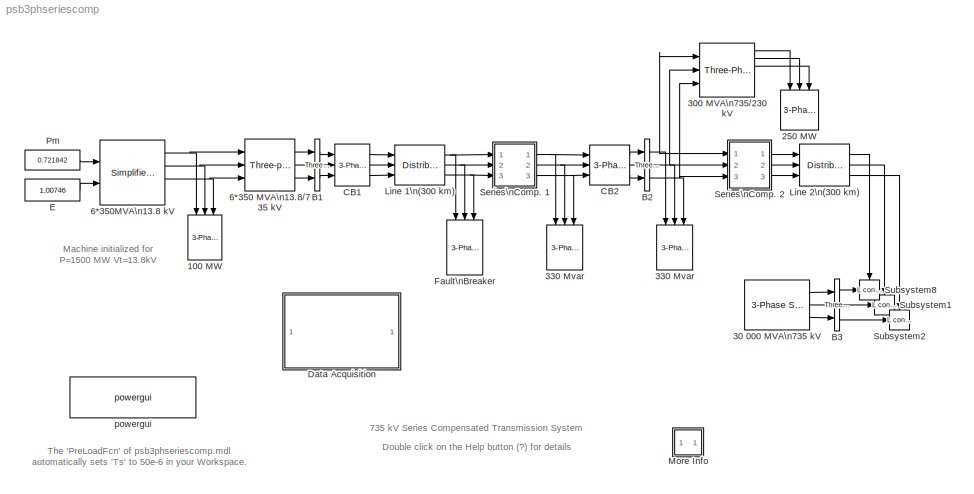
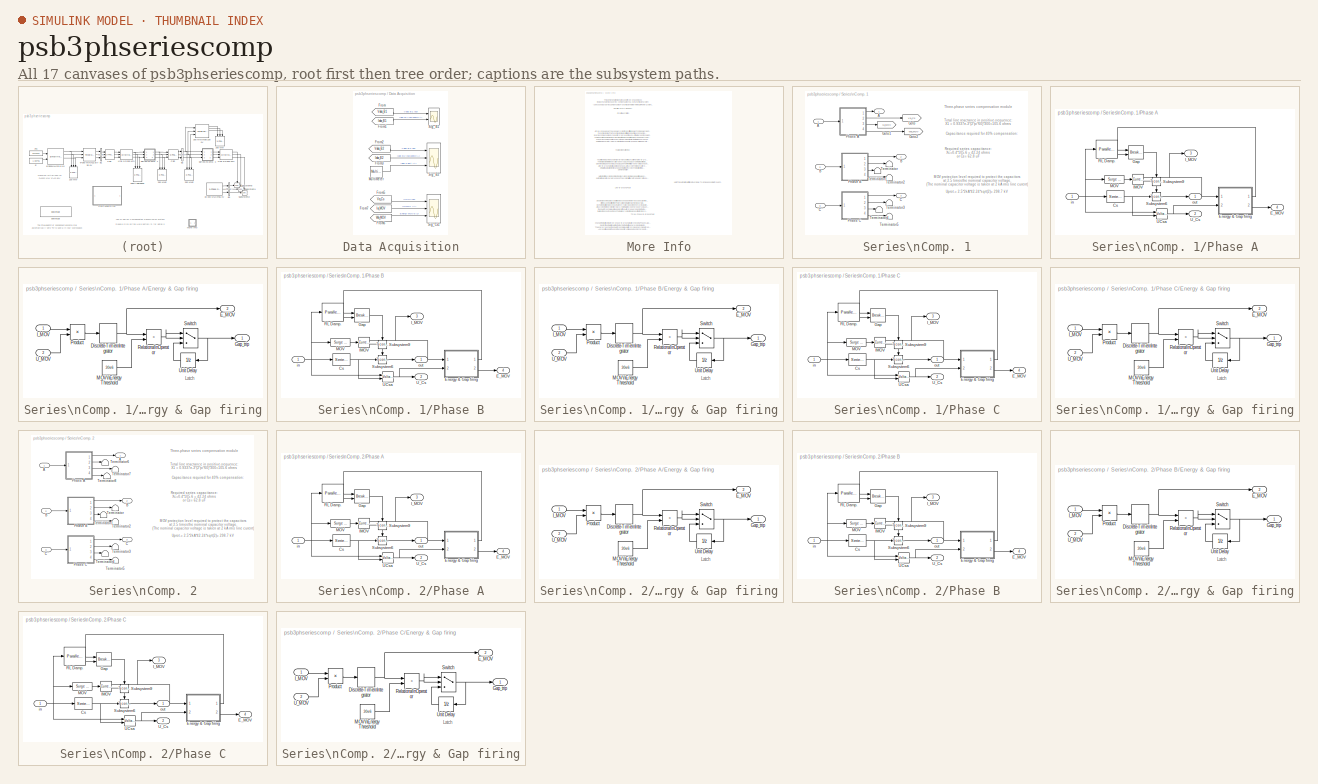
[diagram: thumbnail index - all 17 canvases of the model, root first then tree order]
MODEL psb3phseriescomp
KIND model
CONFIG InitFcn = powericon('psbinitsys',bdroot);
CONFIG PreLoadFcn = assignin('base','Ts',[50e-6])
BLOCK [Reference] 100 MW  REF=powerlib2/Elements/3-Phase\nSeries RLC Load
  P3 = 100e6
  Ports = [3]
  QC3 = 0
  QL3 = 0
  SourceBlock = powerlib2/Elements/3-Phase\nSeries RLC Load
  SourceType = 3-phase series RLC load
  Vpp = 13.8e3
  fn = 60
BLOCK [Reference] 250 MW  REF=powerlib2/Elements/3-Phase\nSeries RLC Load
  P3 = 250e6
  Ports = [3]
  QC3 = 0
  QL3 = 0
  SourceBlock = powerlib2/Elements/3-Phase\nSeries RLC Load
  SourceType = 3-phase series RLC load
  Vpp = 230e3
  fn = 60
BLOCK [Reference] 30 000 MVA\n735 kV  REF=powerlib2/Electrical\nSources/3-Phase Source
  F = 60
  InternalConnection = Yg
  L = 735^2/30000/377
  PSBOutputType = 111
  Phi = 0
  Ports = [0, 3]
  Psc = 30000e6
  R = 735^2/30000/10
  RLoff = on
  SourceBlock = powerlib2/Electrical\nSources/3-Phase Source
  SourceType = 3-Phase Source
  Tag = PoWeRsYsTeMbLoCk
  V = 735e3
  Vbase = 735e3
  XRratio = 10
BLOCK [Reference] 300 MVA\n735//230 kV  REF=powerlib2/Elements/Three-Phase\nTransformer\n(Three Windings)
  PSBOutputType = 1111111
  Ports = [3, 6]
  SourceBlock = powerlib2/Elements/Three-Phase\nTransformer\n(Three Windings)
  SourceType = Three-Phase Transformer (Three Windings)
  Tag = PoWeRsYsTeMbLoCk
  confi = ABC as input terminals
  hyst = off
  ifl = [0.8 -0.8 0.7]
  initialslopes = [+1 +1 +1]
  lm = 1000
  matfile = 'hysteresis'
  mesure = None
  nom = [ 300e6 , 60 ]
  rmag = 500
  sat = [  0,0  ;  0.0012,1.2  ;  1.0,1.45 ]
  sif = off
  w1 = [ 735e3 , 0.002 , 0.15 ]
  w2 = [ 230e3 , 0.002 , 0 ]
  w3 = [ 25e3 , 0.05 , 0.20 ]
  ydw1 = Yg
  ydw2 = Yg
  ydw3 = Delta (D1)
  ynsat = on
BLOCK [Reference] 330 Mvar  REF=powerlib2/Elements/3-Phase\nSeries RLC Load
  P3 = 330e6/250
  Ports = [3]
  QC3 = 0
  QL3 = 330e6
  SourceBlock = powerlib2/Elements/3-Phase\nSeries RLC Load
  SourceType = 3-phase series RLC load
  Vpp = 735e3
  fn = 60
BLOCK [Reference] 330 Mvar   REF=powerlib2/Elements/3-Phase\nSeries RLC Load
  P3 = 330e6/250
  Ports = [3]
  QC3 = 0
  QL3 = 330e6
  SourceBlock = powerlib2/Elements/3-Phase\nSeries RLC Load
  SourceType = 3-phase series RLC load
  Vpp = 735e3
  fn = 60
BLOCK [Reference] 6*350 MVA\n13.8//735 kV  REF=powerlib2/Elements/Three-phase\nTransformer\n(Two Windings)
  PSBOutputType = 111
  Ports = [3, 3]
  SourceBlock = powerlib2/Elements/Three-phase\nTransformer\n(Two Windings)
  SourceType = Three-Phase Transformer (Two Windings)
  Tag = PoWeRsYsTeMbLoCk
  hyst = off
  initialslopes = [+1 +1 +1]
  lm = 500
  matfile = 'hysteresis'
  mesure = None
  nominal = [ 6*350e6 , 60 ]
  params1 = [ 13.8e3 , 0.002 , 0.08 ]
  params2 = [ 735e3 , 0.002 , 0.08 ]
  phi0 = [ 0.8 , -0.8 , 0.7 ]
  rmag = 500
  sat = [ 0,0 ; 0.0024,1.2 ; 1.0,1.52 ]
  sif = off
  type1 = Delta (D1)
  type2 = Yg
  ynsat = off
BLOCK [Reference] 6*350MVA\n13.8 kV  REF=powerlib2/Machines/Simplified Synchronous \nMachine  pu Units
  LoadFlowParameters = [1,0,0,0,0]
  PSBOutputType = 1110
  Ports = [2, 4]
  SourceBlock = powerlib2/Machines/Simplified Synchronous \nMachine  pu Units
  SourceType = Simplified Synchronous Machine
  Tag = PoWeRsYsTeMbLoCk
  conType = 3-wire Y
  iounits = 0
  x1 = [ 6*350e6 13.8e3  60 ]
  x2 = [ inf,0,2 ]
  x3 = [ 0.22/15  0.22 ]
  x4 = [0 3.29695 0.717757 0.717757 0.717757 -0.0992806 -120.099 119.901]
BLOCK [Reference] B1  REF=powerlib2/Measurements/Three-Phase\nV-I Measurement
  IChoice = yes
  OutputType = Complex
  PSBOutputType = 11100
  PSBequivalent = 0
  Pbase = 100e6
  PhasorSimulation = off
  Ports = [3, 3]
  Ppu = on
  SourceBlock = powerlib2/Measurements/Three-Phase\nV-I Measurement
  SourceType = 3-Phase VI Measurement
  Tag = PoWeRsYsTeMmEaSuReMeNt
  VChoice = phase-to-ground
  Vbase = 735e3
  Vpu = on
  labelC = Iabc_B1
  labelV = Vabc_B1
  ualc = on
  ualv = on
BLOCK [Reference] B2  REF=powerlib2/Measurements/Three-Phase\nV-I Measurement
  IChoice = yes
  OutputType = Complex
  PSBOutputType = 11100
  PSBequivalent = 0
  Pbase = 100e6
  PhasorSimulation = off
  Ports = [3, 3]
  Ppu = on
  SourceBlock = powerlib2/Measurements/Three-Phase\nV-I Measurement
  SourceType = 3-Phase VI Measurement
  Tag = PoWeRsYsTeMmEaSuReMeNt
  VChoice = phase-to-ground
  Vbase = 735e3
  Vpu = on
  labelC = Iabc_B2
  labelV = Vabc_B2
  ualc = on
  ualv = on
BLOCK [Reference] B3  REF=powerlib2/Measurements/Three-Phase\nV-I Measurement
  IChoice = no
  OutputType = Complex
  PSBOutputType = 11100
  PSBequivalent = 1
  Pbase = 0
  PhasorSimulation = off
  Ports = [3, 3]
  Ppu = off
  SourceBlock = powerlib2/Measurements/Three-Phase\nV-I Measurement
  SourceType = 3-Phase VI Measurement
  Tag = PoWeRsYsTeMmEaSuReMeNt
  VChoice = no
  Vbase = 0
  Vpu = off
  labelC = Iabc_B3
  labelV = Vabc_B3
  ualc = off
  ualv = off
BLOCK [Reference] CB1  REF=powerlib2/Elements/3-Phase Breaker
  Cp = inf
  Ports = [3, 3]
  Ron = 0.001
  Rp = 1e5
  SourceBlock = powerlib2/Elements/3-Phase Breaker
  SourceType = Three-Phase Breaker
  Ts = Ts
  comext = off
  init_states = closed
  mesure = None
  sa = on
  sb = on
  sc = on
  sw_times = [5/60  ]
BLOCK [Reference] CB2  REF=powerlib2/Elements/3-Phase Breaker
  Cp = inf
  Ports = [3, 3]
  Ron = 0.001
  Rp = 1e5
  SourceBlock = powerlib2/Elements/3-Phase Breaker
  SourceType = Three-Phase Breaker
  Ts = Ts
  comext = off
  init_states = closed
  mesure = None
  sa = on
  sb = on
  sc = on
  sw_times = [5/60  ]
BLOCK [SubSystem] Data Acquisition
  MaskDisplay = disp('Open this block\\nto visualize\\nrecorded signals')
  MaskIconFrame = on
  MaskIconOpaque = on
  MaskIconRotate = none
  MaskIconUnits = autoscale
  MaskType = Data Acquisition
  MinAlgLoopOccurrences = off
  Ports = []
  RTWSystemCode = Auto
  TreatAsAtomicUnit = off
BLOCK [From] Data Acquisition/From
  CloseFcn = tagdialog Close
  DialogController = Simulink.DDGSource
  GotoTag = Vabc_B1
BLOCK [From] Data Acquisition/From1
  CloseFcn = tagdialog Close
  DialogController = Simulink.DDGSource
  GotoTag = Iabc_B1
BLOCK [From] Data Acquisition/From2
  CloseFcn = tagdialog Close
  DialogController = Simulink.DDGSource
  GotoTag = Vabc_B2
BLOCK [From] Data Acquisition/From3
  CloseFcn = tagdialog Close
  DialogController = Simulink.DDGSource
  GotoTag = Iabc_B2
BLOCK [From] Data Acquisition/From5
  CloseFcn = tagdialog Close
  DialogController = Simulink.DDGSource
  GotoTag = Va_Cs
BLOCK [From] Data Acquisition/From6
  CloseFcn = tagdialog Close
  DialogController = Simulink.DDGSource
  GotoTag = Wa_MOV
BLOCK [From] Data Acquisition/From7
  CloseFcn = tagdialog Close
  DialogController = Simulink.DDGSource
  GotoTag = Ia_MOV
BLOCK [Reference] Data Acquisition/Multimeter  REF=powerlib2/Measurements/Multimeter
  AxesSetting = [0,0.1,-100,100]
  Display = 0
  Gain = [1 1 1]
  L = 3
  OutputType = Magnitude
  PSBOutputType = 1
  PSBequivalent = 0
  PhasorSimulation = off
  Ports = [0, 1]
  SavedBlockNames = {}
  SourceBlock = powerlib2/Measurements/Multimeter
  SourceType = MultimeterPSB
  Tag = PoWeRsYsTeMmEaSuReMeNt
  sel = [1 2 3]
  yselected = {'Ib: Fault Breaker/Fault A','Ib: Fault Breaker/Fault B','Ib: Fault Breaker/Fault C'};
BLOCK [Scope] Data Acquisition/Sig_B1
  DataFormat = StructureWithTime
  LimitDataPoints = off
  NumInputPorts = 2
  Ports = [2]
  SampleInput = on
  SampleTime = Ts
  SaveName = Sig_B1
  SaveToWorkspace = on
  TimeRange = 0.2
  YMax = 1.5~40
  YMin = -1.5~-20
BLOCK [Scope] Data Acquisition/Sig_B2
  DataFormat = StructureWithTime
  LimitDataPoints = off
  NumInputPorts = 3
  Ports = [3]
  SampleInput = on
  SampleTime = Ts
  SaveName = Sig_B2
  SaveToWorkspace = on
  TimeRange = 0.2
  YMax = 4~100~20000
  YMin = -2~-100~-10000
BLOCK [Scope] Data Acquisition/Sig_Cs1
  DataFormat = StructureWithTime
  LimitDataPoints = off
  NumInputPorts = 3
  Ports = [3]
  SampleInput = on
  SampleTime = Ts
  SaveName = Sig_Cs1
  SaveToWorkspace = on
  TimeRange = 0.2
  YMax = 300000~15000~4e+007
  YMin = -300000~-10000~0
  ZoomMode = yonly
BLOCK [Constant] E
  Value = 1.00746
BLOCK [Reference] Fault\nBreaker  REF=powerlib2/Elements/3-Phase Fault
  Cp = inf
  Ports = [3]
  Rdef = 0.001
  Rp = inf
  Rt = 1
  SourceBlock = powerlib2/Elements/3-Phase Fault
  SourceType = Three-Phase Fault
  Ts = Ts
  comext = off
  init_statext = [0 0 1]
  mesure = Fault currents
  sa = on
  sb = off
  sc = off
  st = on
  sw_status = [1 0]
  sw_times = [ 1/60 6/60]
BLOCK [Reference] Line 1\n(300 km)  REF=powerlib2/Elements/Distributed Parameters Line
  PSBOutputType = 111111111111111111111111111111
  Ports = [3, 3]
  SourceBlock = powerlib2/Elements/Distributed Parameters Line
  SourceType = Distributed Parameters Line
  Tag = PoWeRsYsTeMbLoCk
  c = [12.74e-9 7.751e-9]
  f = 60
  l = [0.9337e-3  4.1264e-3]
  lgt = 300
  mesure = None
  n = 3
  r = [0.01273 0.3864]
  x1 = [0 -2.475e-008 3.253e+005 -6.709e+005;0.0003733 -2.356e-008 4.162e+005 -6.186e+005;0.0007465 -2.192e-008 4.989e+005 -5.541e+005;0.00112 -1.983e-008 5.716e+005 -4.787e+005;0.001493 -1.736e-008 6.331e+005 -3.938e+005;0.001866 -1.454e-008 6.821e+005 -3.011e+005]
  x2 = [0 -7.661e-009 1.438e+005 -7.357e+005;0.0003733 -7.194e-009 2.455e+005 -7.083e+005;0.0007465 -6.585e-009 3.424e+005 -6.668e+005;0.00112 -5.846e-009 4.326e+005 -6.122e+005;0.001493 -4.991e-009 5.142e+005 -5.455e+005;0.001866 -4.038e-009 5.856e+005 -4.68e+005]
  x3 = [0 -1.777e-011 17.22 -960.1;0.0003733 -1.332e-011 151.7 -948.2;0.0007465 -8.607e-012 283.2 -917.5;0.00112 -3.722e-012 409.1 -868.7;0.001493 1.237e-012 526.9 -802.8;0.001866 6.171e-012 634.2 -721]
  x4 = [0 -2.554e-011 678 -4520;0.0003733 -2.99e-011 1305 -4380;0.0007465 -3.366e-011 1907 -4154;0.00112 -3.676e-011 2470 -3846;0.001493 -3.914e-011 2985 -3461;0.001866 -4.074e-011 3441 -3008]
  x5 = 0.001866
BLOCK [Reference] Line 2\n(300 km)  REF=powerlib2/Elements/Distributed Parameters Line
  PSBOutputType = 111111111111111111111111111111
  Ports = [3, 3]
  SourceBlock = powerlib2/Elements/Distributed Parameters Line
  SourceType = Distributed Parameters Line
  Tag = PoWeRsYsTeMbLoCk
  c = [12.74e-9 7.751e-9]
  f = 60
  l = [0.9337e-3  4.1264e-3]
  lgt = 300
  mesure = None
  n = 3
  r = [0.01273 0.3864]
  x1 = [0 -1.083e-008 2.734e+005 -6.876e+005;0.0003733 -1.025e-008 3.672e+005 -6.425e+005;0.0007465 -9.473e-009 4.536e+005 -5.847e+005;0.00112 -8.508e-009 5.311e+005 -5.153e+005;0.001493 -7.375e-009 5.982e+005 -4.357e+005;0.001866 -6.096e-009 6.534e+005 -3.475e+005]
  x2 = [0 -4.354e-010 1.25e+005 -7.321e+005;0.0003733 -3.901e-010 2.265e+005 -7.074e+005;0.0007465 -3.37e-010 3.235e+005 -6.686e+005;0.00112 -2.773e-010 4.14e+005 -6.166e+005;0.001493 -2.12e-010 4.964e+005 -5.525e+005;0.001866 -1.426e-010 5.69e+005 -4.774e+005]
  x3 = [0 -4.132e-012 22.32 -1297;0.0003733 -1.462e-012 204 -1281;0.0007465 1.237e-012 381.6 -1240;0.00112 3.912e-012 551.7 -1174;0.001493 6.509e-012 710.8 -1085;0.001866 8.978e-012 855.9 -974.4]
  x4 = [0 -1.167e-011 405.1 -4181;0.0003733 -1.439e-011 987.4 -4082;0.0007465 -1.682e-011 1550 -3904;0.00112 -1.892e-011 2082 -3648;0.001493 -2.065e-011 2573 -3319;0.001866 -2.197e-011 3013 -2926]
  x5 = 0.001866
BLOCK [SubSystem] More Info
  MaskDisplay = disp('?')
  MaskIconFrame = on
  MaskIconOpaque = on
  MaskIconRotate = none
  MaskIconUnits = autoscale
  MinAlgLoopOccurrences = off
  Ports = []
  RTWSystemCode = Auto
  TreatAsAtomicUnit = off
BLOCK [Constant] Pm
  Value = 0.721842
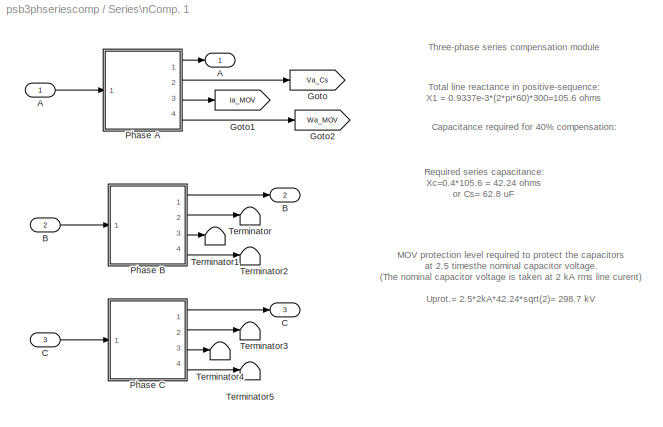
BLOCK [SubSystem] Series\nComp. 1
  MaskDisplay = plot(0,0,100,100,[25 45],[50 50], [45 45],[35 65],[55 55],[35 65], [55 75],[50 50])
  MaskIconFrame = on
  MaskIconOpaque = off
  MaskIconRotate = none
  MaskIconUnits = autoscale
  MinAlgLoopOccurrences = off
  Ports = [3, 3]
  RTWSystemCode = Auto
  TreatAsAtomicUnit = off
BLOCK [Inport] Series\nComp. 1/A
  IconDisplay = Port number
  LatchInput = off
  Port = 1
BLOCK [Outport] Series\nComp. 1/A 
  BusOutputAsStruct = off
  IconDisplay = Port number
  InitialOutput = 0
BLOCK [Inport] Series\nComp. 1/B
  IconDisplay = Port number
  LatchInput = off
  Port = 2
BLOCK [Outport] Series\nComp. 1/B 
  BusOutputAsStruct = off
  IconDisplay = Port number
  InitialOutput = 0
  Port = 2
BLOCK [Inport] Series\nComp. 1/C
  IconDisplay = Port number
  LatchInput = off
  Port = 3
BLOCK [Outport] Series\nComp. 1/C 
  BusOutputAsStruct = off
  IconDisplay = Port number
  InitialOutput = 0
  Port = 3
BLOCK [Goto] Series\nComp. 1/Goto
  DialogController = Simulink.DDGSource
  GotoTag = Va_Cs
  TagVisibility = global
BLOCK [Goto] Series\nComp. 1/Goto1
  DialogController = Simulink.DDGSource
  GotoTag = Ia_MOV
  TagVisibility = global
BLOCK [Goto] Series\nComp. 1/Goto2
  DialogController = Simulink.DDGSource
  GotoTag = Wa_MOV
  TagVisibility = global
BLOCK [SubSystem] Series\nComp. 1/Phase A
  MinAlgLoopOccurrences = off
  Ports = [1, 4]
  RTWSystemCode = Auto
  TreatAsAtomicUnit = off
BLOCK [Reference] Series\nComp. 1/Phase A/Cs  REF=powerlib2/Elements/Series RLC Branch
  PSBOutputType = 1
  Ports = [1, 1]
  SourceBlock = powerlib2/Elements/Series RLC Branch
  SourceType = Series RLC Branch
  Tag = PoWeRsYsTeMbLoCk
  a = 0
  b = 0
  c = 62.8e-6
  mesure = None
BLOCK [Outport] Series\nComp. 1/Phase A/E_MOV
  BusOutputAsStruct = off
  IconDisplay = Port number
  Port = 4
BLOCK [SubSystem] Series\nComp. 1/Phase A/Energy & Gap firing
  MinAlgLoopOccurrences = off
  Ports = [2, 2]
  RTWSystemCode = Auto
  TreatAsAtomicUnit = off
BLOCK [DiscreteIntegrator] Series\nComp. 1/Phase A/Energy & Gap firing/Discrete-Time\nIntegrator
  ExternalReset = none
  ICPrevOutput = DiscIntNeverNeededParam
  ICPrevScaledInput = DiscIntNeverNeededParam
  InitialConditionSource = internal
  IntegratorMethod = Integration: Forward Euler
  Ports = [1, 1]
  SampleTime = Ts
BLOCK [Outport] Series\nComp. 1/Phase A/Energy & Gap firing/E_MOV
  BusOutputAsStruct = off
  IconDisplay = Port number
  InitialOutput = 0
  Port = 2
BLOCK [Outport] Series\nComp. 1/Phase A/Energy & Gap firing/Gap_trip
  BusOutputAsStruct = off
  IconDisplay = Port number
BLOCK [Inport] Series\nComp. 1/Phase A/Energy & Gap firing/I_MOV
  IconDisplay = Port number
  LatchInput = off
  Port = 1
BLOCK [Constant] Series\nComp. 1/Phase A/Energy & Gap firing/MOV\nEnergy Threshold
  Value = 30e6
BLOCK [Product] Series\nComp. 1/Phase A/Energy & Gap firing/Product
  Ports = [2, 1]
  RndMeth = Floor
BLOCK [RelationalOperator] Series\nComp. 1/Phase A/Energy & Gap firing/Relational\nOperator
  Operator = >
  ZeroCross = off
BLOCK [Switch] Series\nComp. 1/Phase A/Energy & Gap firing/Switch
  SaturateOnIntegerOverflow = off
  Threshold = 0.5
  ZeroCross = off
BLOCK [Inport] Series\nComp. 1/Phase A/Energy & Gap firing/U_MOV
  IconDisplay = Port number
  LatchInput = off
  Port = 2
BLOCK [UnitDelay] Series\nComp. 1/Phase A/Energy & Gap firing/Unit Delay
  SampleTime = Ts
BLOCK [Reference] Series\nComp. 1/Phase A/Gap  REF=powerlib2/Elements/Breaker
  PSBOutputType = 1
  Ports = [2, 1]
  SourceBlock = powerlib2/Elements/Breaker
  SourceType = Breaker
  Tag = PoWeRsYsTeMbLoCk
  Ts = 0
  a = 0.001
  c = 0
  comext = on
  cs = 0
  mesure = None
  rs = inf
  times = [ 4/60  5/60 ]
BLOCK [Reference] Series\nComp. 1/Phase A/IMOV  REF=powerlib2/Measurements/Current Measurement
  OutputType = Magnitude
  PSBOutputType = 01
  PSBequivalent = 0
  PhasorSimulation = off
  Ports = [1, 2]
  SourceBlock = powerlib2/Measurements/Current Measurement
  SourceType = Current Measurement
  Tag = PoWeRsYsTeMmEaSuReMeNt
BLOCK [Outport] Series\nComp. 1/Phase A/I_MOV
  BusOutputAsStruct = off
  IconDisplay = Port number
  Port = 3
BLOCK [Reference] Series\nComp. 1/Phase A/MOV  REF=powerlib2/Elements/Surge Arrester
  PSBOutputType = 1
  Ports = [1, 1]
  SourceBlock = powerlib2/Elements/Surge Arrester
  SourceType = Surge Arrester
  Tag = PoWeRsYsTeMbLoCk
  mesure = None
  x1 = 298.7e+03
  x2 = 60
  x3 = 500
  x4 = [.955 50]
  x5 = [1.0 25]
  x6 = [.9915 16.5]
BLOCK [Reference] Series\nComp. 1/Phase A/RL Damp.  REF=powerlib2/Elements/Parallel RLC Branch
  PSBOutputType = 1
  Ports = [1, 1]
  SourceBlock = powerlib2/Elements/Parallel RLC Branch
  SourceType = Parallel RLC Branch
  Tag = PoWeRsYsTeMbLoCk
  a = 7.5
  b = 1.7e-3
  c = 0
  mesure = None
BLOCK [Reference] Series\nComp. 1/Phase A/Subsystem6  REF=powerlib2/Connectors/T connector
  PSBOutputType = 1
  Ports = [1, 1, 1]
  SourceBlock = powerlib2/Connectors/T connector
  SourceType = Bus Bar
  Tag = PoWeRsYsTeMbLoCk
BLOCK [Reference] Series\nComp. 1/Phase A/Subsystem9  REF=powerlib2/Connectors/T connector
  PSBOutputType = 1
  Ports = [1, 1, 1]
  SourceBlock = powerlib2/Connectors/T connector
  SourceType = Bus Bar
  Tag = PoWeRsYsTeMbLoCk
BLOCK [Reference] Series\nComp. 1/Phase A/UCsa  REF=powerlib2/Measurements/Voltage Measurement
  OutputType = Magnitude
  PSBOutputType = 0
  PSBequivalent = 0
  PhasorSimulation = off
  Ports = [2, 1]
  SourceBlock = powerlib2/Measurements/Voltage Measurement
  SourceType = Voltage Measurement
  Tag = PoWeRsYsTeMmEaSuReMeNt
BLOCK [Outport] Series\nComp. 1/Phase A/U_Cs
  BusOutputAsStruct = off
  IconDisplay = Port number
  Port = 2
BLOCK [Inport] Series\nComp. 1/Phase A/in
  IconDisplay = Port number
  LatchInput = off
  Port = 1
BLOCK [Outport] Series\nComp. 1/Phase A/out
  BusOutputAsStruct = off
  IconDisplay = Port number
BLOCK [SubSystem] Series\nComp. 1/Phase B
  MinAlgLoopOccurrences = off
  Ports = [1, 4]
  RTWSystemCode = Auto
  TreatAsAtomicUnit = off
BLOCK [Reference] Series\nComp. 1/Phase B/Cs  REF=powerlib2/Elements/Series RLC Branch
  PSBOutputType = 1
  Ports = [1, 1]
  SourceBlock = powerlib2/Elements/Series RLC Branch
  SourceType = Series RLC Branch
  Tag = PoWeRsYsTeMbLoCk
  a = 0
  b = 0
  c = 62.8e-6
  mesure = None
BLOCK [Outport] Series\nComp. 1/Phase B/E_MOV
  BusOutputAsStruct = off
  IconDisplay = Port number
  Port = 4
BLOCK [SubSystem] Series\nComp. 1/Phase B/Energy & Gap firing
  MinAlgLoopOccurrences = off
  Ports = [2, 2]
  RTWSystemCode = Auto
  TreatAsAtomicUnit = off
BLOCK [DiscreteIntegrator] Series\nComp. 1/Phase B/Energy & Gap firing/Discrete-Time\nIntegrator
  ExternalReset = none
  ICPrevOutput = DiscIntNeverNeededParam
  ICPrevScaledInput = DiscIntNeverNeededParam
  InitialConditionSource = internal
  IntegratorMethod = Integration: Forward Euler
  Ports = [1, 1]
  SampleTime = Ts
BLOCK [Outport] Series\nComp. 1/Phase B/Energy & Gap firing/E_MOV
  BusOutputAsStruct = off
  IconDisplay = Port number
  InitialOutput = 0
  Port = 2
BLOCK [Outport] Series\nComp. 1/Phase B/Energy & Gap firing/Gap_trip
  BusOutputAsStruct = off
  IconDisplay = Port number
BLOCK [Inport] Series\nComp. 1/Phase B/Energy & Gap firing/I_MOV
  IconDisplay = Port number
  LatchInput = off
  Port = 1
BLOCK [Constant] Series\nComp. 1/Phase B/Energy & Gap firing/MOV\nEnergy Threshold
  Value = 30e6
BLOCK [Product] Series\nComp. 1/Phase B/Energy & Gap firing/Product
  Ports = [2, 1]
  RndMeth = Floor
BLOCK [RelationalOperator] Series\nComp. 1/Phase B/Energy & Gap firing/Relational\nOperator
  Operator = >
  ZeroCross = off
BLOCK [Switch] Series\nComp. 1/Phase B/Energy & Gap firing/Switch
  SaturateOnIntegerOverflow = off
  Threshold = 0.5
  ZeroCross = off
BLOCK [Inport] Series\nComp. 1/Phase B/Energy & Gap firing/U_MOV
  IconDisplay = Port number
  LatchInput = off
  Port = 2
BLOCK [UnitDelay] Series\nComp. 1/Phase B/Energy & Gap firing/Unit Delay
  SampleTime = Ts
BLOCK [Reference] Series\nComp. 1/Phase B/Gap  REF=powerlib2/Elements/Breaker
  PSBOutputType = 1
  Ports = [2, 1]
  SourceBlock = powerlib2/Elements/Breaker
  SourceType = Breaker
  Tag = PoWeRsYsTeMbLoCk
  Ts = 0
  a = 0.001
  c = 0
  comext = on
  cs = 0
  mesure = None
  rs = inf
  times = [ 4/60  5/60 ]
BLOCK [Reference] Series\nComp. 1/Phase B/IMOV  REF=powerlib2/Measurements/Current Measurement
  OutputType = Magnitude
  PSBOutputType = 01
  PSBequivalent = 0
  PhasorSimulation = off
  Ports = [1, 2]
  SourceBlock = powerlib2/Measurements/Current Measurement
  SourceType = Current Measurement
  Tag = PoWeRsYsTeMmEaSuReMeNt
BLOCK [Outport] Series\nComp. 1/Phase B/I_MOV
  BusOutputAsStruct = off
  IconDisplay = Port number
  Port = 3
BLOCK [Reference] Series\nComp. 1/Phase B/MOV  REF=powerlib2/Elements/Surge Arrester
  PSBOutputType = 1
  Ports = [1, 1]
  SourceBlock = powerlib2/Elements/Surge Arrester
  SourceType = Surge Arrester
  Tag = PoWeRsYsTeMbLoCk
  mesure = None
  x1 = 298.7e+03
  x2 = 60
  x3 = 500
  x4 = [.955 50]
  x5 = [1.0 25]
  x6 = [.9915 16.5]
BLOCK [Reference] Series\nComp. 1/Phase B/RL Damp.  REF=powerlib2/Elements/Parallel RLC Branch
  PSBOutputType = 1
  Ports = [1, 1]
  SourceBlock = powerlib2/Elements/Parallel RLC Branch
  SourceType = Parallel RLC Branch
  Tag = PoWeRsYsTeMbLoCk
  a = 7.5
  b = 1.7e-3
  c = 0
  mesure = None
BLOCK [Reference] Series\nComp. 1/Phase B/Subsystem6  REF=powerlib2/Connectors/T connector
  PSBOutputType = 1
  Ports = [1, 1, 1]
  SourceBlock = powerlib2/Connectors/T connector
  SourceType = Bus Bar
  Tag = PoWeRsYsTeMbLoCk
BLOCK [Reference] Series\nComp. 1/Phase B/Subsystem9  REF=powerlib2/Connectors/T connector
  PSBOutputType = 1
  Ports = [1, 1, 1]
  SourceBlock = powerlib2/Connectors/T connector
  SourceType = Bus Bar
  Tag = PoWeRsYsTeMbLoCk
BLOCK [Reference] Series\nComp. 1/Phase B/UCsa  REF=powerlib2/Measurements/Voltage Measurement
  OutputType = Magnitude
  PSBOutputType = 0
  PSBequivalent = 0
  PhasorSimulation = off
  Ports = [2, 1]
  SourceBlock = powerlib2/Measurements/Voltage Measurement
  SourceType = Voltage Measurement
  Tag = PoWeRsYsTeMmEaSuReMeNt
BLOCK [Outport] Series\nComp. 1/Phase B/U_Cs
  BusOutputAsStruct = off
  IconDisplay = Port number
  Port = 2
BLOCK [Inport] Series\nComp. 1/Phase B/in
  IconDisplay = Port number
  LatchInput = off
  Port = 1
BLOCK [Outport] Series\nComp. 1/Phase B/out
  BusOutputAsStruct = off
  IconDisplay = Port number
BLOCK [SubSystem] Series\nComp. 1/Phase C
  MinAlgLoopOccurrences = off
  Ports = [1, 4]
  RTWSystemCode = Auto
  TreatAsAtomicUnit = off
BLOCK [Reference] Series\nComp. 1/Phase C/Cs  REF=powerlib2/Elements/Series RLC Branch
  PSBOutputType = 1
  Ports = [1, 1]
  SourceBlock = powerlib2/Elements/Series RLC Branch
  SourceType = Series RLC Branch
  Tag = PoWeRsYsTeMbLoCk
  a = 0
  b = 0
  c = 62.8e-6
  mesure = None
BLOCK [Outport] Series\nComp. 1/Phase C/E_MOV
  BusOutputAsStruct = off
  IconDisplay = Port number
  Port = 4
BLOCK [SubSystem] Series\nComp. 1/Phase C/Energy & Gap firing
  MinAlgLoopOccurrences = off
  Ports = [2, 2]
  RTWSystemCode = Auto
  TreatAsAtomicUnit = off
BLOCK [DiscreteIntegrator] Series\nComp. 1/Phase C/Energy & Gap firing/Discrete-Time\nIntegrator
  ExternalReset = none
  ICPrevOutput = DiscIntNeverNeededParam
  ICPrevScaledInput = DiscIntNeverNeededParam
  InitialConditionSource = internal
  IntegratorMethod = Integration: Forward Euler
  Ports = [1, 1]
  SampleTime = Ts
BLOCK [Outport] Series\nComp. 1/Phase C/Energy & Gap firing/E_MOV
  BusOutputAsStruct = off
  IconDisplay = Port number
  InitialOutput = 0
  Port = 2
BLOCK [Outport] Series\nComp. 1/Phase C/Energy & Gap firing/Gap_trip
  BusOutputAsStruct = off
  IconDisplay = Port number
BLOCK [Inport] Series\nComp. 1/Phase C/Energy & Gap firing/I_MOV
  IconDisplay = Port number
  LatchInput = off
  Port = 1
BLOCK [Constant] Series\nComp. 1/Phase C/Energy & Gap firing/MOV\nEnergy Threshold
  Value = 30e6
BLOCK [Product] Series\nComp. 1/Phase C/Energy & Gap firing/Product
  Ports = [2, 1]
  RndMeth = Floor
BLOCK [RelationalOperator] Series\nComp. 1/Phase C/Energy & Gap firing/Relational\nOperator
  Operator = >
  ZeroCross = off
BLOCK [Switch] Series\nComp. 1/Phase C/Energy & Gap firing/Switch
  SaturateOnIntegerOverflow = off
  Threshold = 0.5
  ZeroCross = off
BLOCK [Inport] Series\nComp. 1/Phase C/Energy & Gap firing/U_MOV
  IconDisplay = Port number
  LatchInput = off
  Port = 2
BLOCK [UnitDelay] Series\nComp. 1/Phase C/Energy & Gap firing/Unit Delay
  SampleTime = Ts
BLOCK [Reference] Series\nComp. 1/Phase C/Gap  REF=powerlib2/Elements/Breaker
  PSBOutputType = 1
  Ports = [2, 1]
  SourceBlock = powerlib2/Elements/Breaker
  SourceType = Breaker
  Tag = PoWeRsYsTeMbLoCk
  Ts = 0
  a = 0.001
  c = 0
  comext = on
  cs = 0
  mesure = None
  rs = inf
  times = [ 4/60  5/60 ]
BLOCK [Reference] Series\nComp. 1/Phase C/IMOV  REF=powerlib2/Measurements/Current Measurement
  OutputType = Magnitude
  PSBOutputType = 01
  PSBequivalent = 0
  PhasorSimulation = off
  Ports = [1, 2]
  SourceBlock = powerlib2/Measurements/Current Measurement
  SourceType = Current Measurement
  Tag = PoWeRsYsTeMmEaSuReMeNt
BLOCK [Outport] Series\nComp. 1/Phase C/I_MOV
  BusOutputAsStruct = off
  IconDisplay = Port number
  Port = 3
BLOCK [Reference] Series\nComp. 1/Phase C/MOV  REF=powerlib2/Elements/Surge Arrester
  PSBOutputType = 1
  Ports = [1, 1]
  SourceBlock = powerlib2/Elements/Surge Arrester
  SourceType = Surge Arrester
  Tag = PoWeRsYsTeMbLoCk
  mesure = None
  x1 = 298.7e+03
  x2 = 60
  x3 = 500
  x4 = [.955 50]
  x5 = [1.0 25]
  x6 = [.9915 16.5]
BLOCK [Reference] Series\nComp. 1/Phase C/RL Damp.  REF=powerlib2/Elements/Parallel RLC Branch
  PSBOutputType = 1
  Ports = [1, 1]
  SourceBlock = powerlib2/Elements/Parallel RLC Branch
  SourceType = Parallel RLC Branch
  Tag = PoWeRsYsTeMbLoCk
  a = 7.5
  b = 1.7e-3
  c = 0
  mesure = None
BLOCK [Reference] Series\nComp. 1/Phase C/Subsystem6  REF=powerlib2/Connectors/T connector
  PSBOutputType = 1
  Ports = [1, 1, 1]
  SourceBlock = powerlib2/Connectors/T connector
  SourceType = Bus Bar
  Tag = PoWeRsYsTeMbLoCk
BLOCK [Reference] Series\nComp. 1/Phase C/Subsystem9  REF=powerlib2/Connectors/T connector
  PSBOutputType = 1
  Ports = [1, 1, 1]
  SourceBlock = powerlib2/Connectors/T connector
  SourceType = Bus Bar
  Tag = PoWeRsYsTeMbLoCk
BLOCK [Reference] Series\nComp. 1/Phase C/UCsa  REF=powerlib2/Measurements/Voltage Measurement
  OutputType = Magnitude
  PSBOutputType = 0
  PSBequivalent = 0
  PhasorSimulation = off
  Ports = [2, 1]
  SourceBlock = powerlib2/Measurements/Voltage Measurement
  SourceType = Voltage Measurement
  Tag = PoWeRsYsTeMmEaSuReMeNt
BLOCK [Outport] Series\nComp. 1/Phase C/U_Cs
  BusOutputAsStruct = off
  IconDisplay = Port number
  Port = 2
BLOCK [Inport] Series\nComp. 1/Phase C/in
  IconDisplay = Port number
  LatchInput = off
  Port = 1
BLOCK [Outport] Series\nComp. 1/Phase C/out
  BusOutputAsStruct = off
  IconDisplay = Port number
BLOCK [Terminator] Series\nComp. 1/Terminator
BLOCK [Terminator] Series\nComp. 1/Terminator1
BLOCK [Terminator] Series\nComp. 1/Terminator2
BLOCK [Terminator] Series\nComp. 1/Terminator3
BLOCK [Terminator] Series\nComp. 1/Terminator4
BLOCK [Terminator] Series\nComp. 1/Terminator5
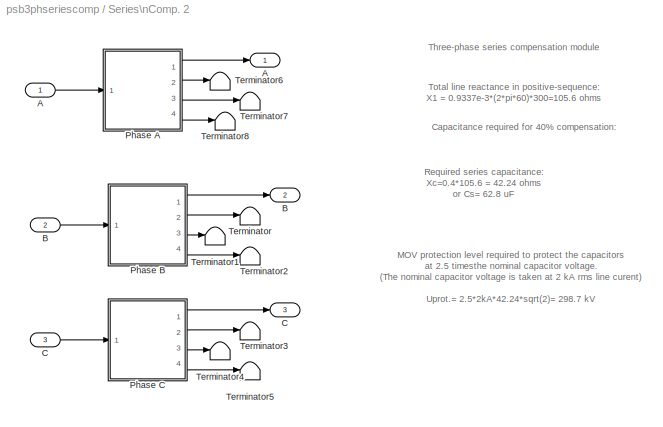
BLOCK [SubSystem] Series\nComp. 2
  MaskDisplay = plot(0,0,100,100,[25 45],[50 50], [45 45],[35 65],[55 55],[35 65], [55 75],[50 50])
  MaskIconFrame = on
  MaskIconOpaque = off
  MaskIconRotate = none
  MaskIconUnits = autoscale
  MinAlgLoopOccurrences = off
  Ports = [3, 3]
  RTWSystemCode = Auto
  TreatAsAtomicUnit = off
BLOCK [Inport] Series\nComp. 2/A
  IconDisplay = Port number
  LatchInput = off
  Port = 1
BLOCK [Outport] Series\nComp. 2/A 
  BusOutputAsStruct = off
  IconDisplay = Port number
  InitialOutput = 0
BLOCK [Inport] Series\nComp. 2/B
  IconDisplay = Port number
  LatchInput = off
  Port = 2
BLOCK [Outport] Series\nComp. 2/B 
  BusOutputAsStruct = off
  IconDisplay = Port number
  InitialOutput = 0
  Port = 2
BLOCK [Inport] Series\nComp. 2/C
  IconDisplay = Port number
  LatchInput = off
  Port = 3
BLOCK [Outport] Series\nComp. 2/C 
  BusOutputAsStruct = off
  IconDisplay = Port number
  InitialOutput = 0
  Port = 3
BLOCK [SubSystem] Series\nComp. 2/Phase A
  MinAlgLoopOccurrences = off
  Ports = [1, 4]
  RTWSystemCode = Auto
  TreatAsAtomicUnit = off
BLOCK [Reference] Series\nComp. 2/Phase A/Cs  REF=powerlib2/Elements/Series RLC Branch
  PSBOutputType = 1
  Ports = [1, 1]
  SourceBlock = powerlib2/Elements/Series RLC Branch
  SourceType = Series RLC Branch
  Tag = PoWeRsYsTeMbLoCk
  a = 0
  b = 0
  c = 62.8e-6
  mesure = None
BLOCK [Outport] Series\nComp. 2/Phase A/E_MOV
  BusOutputAsStruct = off
  IconDisplay = Port number
  Port = 4
BLOCK [SubSystem] Series\nComp. 2/Phase A/Energy & Gap firing
  MinAlgLoopOccurrences = off
  Ports = [2, 2]
  RTWSystemCode = Auto
  TreatAsAtomicUnit = off
BLOCK [DiscreteIntegrator] Series\nComp. 2/Phase A/Energy & Gap firing/Discrete-Time\nIntegrator
  ExternalReset = none
  ICPrevOutput = DiscIntNeverNeededParam
  ICPrevScaledInput = DiscIntNeverNeededParam
  InitialConditionSource = internal
  IntegratorMethod = Integration: Forward Euler
  Ports = [1, 1]
  SampleTime = Ts
BLOCK [Outport] Series\nComp. 2/Phase A/Energy & Gap firing/E_MOV
  BusOutputAsStruct = off
  IconDisplay = Port number
  InitialOutput = 0
  Port = 2
BLOCK [Outport] Series\nComp. 2/Phase A/Energy & Gap firing/Gap_trip
  BusOutputAsStruct = off
  IconDisplay = Port number
BLOCK [Inport] Series\nComp. 2/Phase A/Energy & Gap firing/I_MOV
  IconDisplay = Port number
  LatchInput = off
  Port = 1
BLOCK [Constant] Series\nComp. 2/Phase A/Energy & Gap firing/MOV\nEnergy Threshold
  Value = 30e6
BLOCK [Product] Series\nComp. 2/Phase A/Energy & Gap firing/Product
  Ports = [2, 1]
  RndMeth = Floor
BLOCK [RelationalOperator] Series\nComp. 2/Phase A/Energy & Gap firing/Relational\nOperator
  Operator = >
  ZeroCross = off
BLOCK [Switch] Series\nComp. 2/Phase A/Energy & Gap firing/Switch
  SaturateOnIntegerOverflow = off
  Threshold = 0.5
  ZeroCross = off
BLOCK [Inport] Series\nComp. 2/Phase A/Energy & Gap firing/U_MOV
  IconDisplay = Port number
  LatchInput = off
  Port = 2
BLOCK [UnitDelay] Series\nComp. 2/Phase A/Energy & Gap firing/Unit Delay
  SampleTime = Ts
BLOCK [Reference] Series\nComp. 2/Phase A/Gap  REF=powerlib2/Elements/Breaker
  PSBOutputType = 1
  Ports = [2, 1]
  SourceBlock = powerlib2/Elements/Breaker
  SourceType = Breaker
  Tag = PoWeRsYsTeMbLoCk
  Ts = 0
  a = 0.001
  c = 0
  comext = on
  cs = 0
  mesure = None
  rs = inf
  times = [ 4/60  5/60 ]
BLOCK [Reference] Series\nComp. 2/Phase A/IMOV  REF=powerlib2/Measurements/Current Measurement
  OutputType = Magnitude
  PSBOutputType = 01
  PSBequivalent = 0
  PhasorSimulation = off
  Ports = [1, 2]
  SourceBlock = powerlib2/Measurements/Current Measurement
  SourceType = Current Measurement
  Tag = PoWeRsYsTeMmEaSuReMeNt
BLOCK [Outport] Series\nComp. 2/Phase A/I_MOV
  BusOutputAsStruct = off
  IconDisplay = Port number
  Port = 3
BLOCK [Reference] Series\nComp. 2/Phase A/MOV  REF=powerlib2/Elements/Surge Arrester
  PSBOutputType = 1
  Ports = [1, 1]
  SourceBlock = powerlib2/Elements/Surge Arrester
  SourceType = Surge Arrester
  Tag = PoWeRsYsTeMbLoCk
  mesure = None
  x1 = 298.7e+03
  x2 = 60
  x3 = 500
  x4 = [.955 50]
  x5 = [1.0 25]
  x6 = [.9915 16.5]
BLOCK [Reference] Series\nComp. 2/Phase A/RL Damp.  REF=powerlib2/Elements/Parallel RLC Branch
  PSBOutputType = 1
  Ports = [1, 1]
  SourceBlock = powerlib2/Elements/Parallel RLC Branch
  SourceType = Parallel RLC Branch
  Tag = PoWeRsYsTeMbLoCk
  a = 7.5
  b = 1.7e-3
  c = 0
  mesure = None
BLOCK [Reference] Series\nComp. 2/Phase A/Subsystem6  REF=powerlib2/Connectors/T connector
  PSBOutputType = 1
  Ports = [1, 1, 1]
  SourceBlock = powerlib2/Connectors/T connector
  SourceType = Bus Bar
  Tag = PoWeRsYsTeMbLoCk
BLOCK [Reference] Series\nComp. 2/Phase A/Subsystem9  REF=powerlib2/Connectors/T connector
  PSBOutputType = 1
  Ports = [1, 1, 1]
  SourceBlock = powerlib2/Connectors/T connector
  SourceType = Bus Bar
  Tag = PoWeRsYsTeMbLoCk
BLOCK [Reference] Series\nComp. 2/Phase A/UCsa  REF=powerlib2/Measurements/Voltage Measurement
  OutputType = Magnitude
  PSBOutputType = 0
  PSBequivalent = 0
  PhasorSimulation = off
  Ports = [2, 1]
  SourceBlock = powerlib2/Measurements/Voltage Measurement
  SourceType = Voltage Measurement
  Tag = PoWeRsYsTeMmEaSuReMeNt
BLOCK [Outport] Series\nComp. 2/Phase A/U_Cs
  BusOutputAsStruct = off
  IconDisplay = Port number
  Port = 2
BLOCK [Inport] Series\nComp. 2/Phase A/in
  IconDisplay = Port number
  LatchInput = off
  Port = 1
BLOCK [Outport] Series\nComp. 2/Phase A/out
  BusOutputAsStruct = off
  IconDisplay = Port number
BLOCK [SubSystem] Series\nComp. 2/Phase B
  MinAlgLoopOccurrences = off
  Ports = [1, 4]
  RTWSystemCode = Auto
  TreatAsAtomicUnit = off
BLOCK [Reference] Series\nComp. 2/Phase B/Cs  REF=powerlib2/Elements/Series RLC Branch
  PSBOutputType = 1
  Ports = [1, 1]
  SourceBlock = powerlib2/Elements/Series RLC Branch
  SourceType = Series RLC Branch
  Tag = PoWeRsYsTeMbLoCk
  a = 0
  b = 0
  c = 62.8e-6
  mesure = None
BLOCK [Outport] Series\nComp. 2/Phase B/E_MOV
  BusOutputAsStruct = off
  IconDisplay = Port number
  Port = 4
BLOCK [SubSystem] Series\nComp. 2/Phase B/Energy & Gap firing
  MinAlgLoopOccurrences = off
  Ports = [2, 2]
  RTWSystemCode = Auto
  TreatAsAtomicUnit = off
BLOCK [DiscreteIntegrator] Series\nComp. 2/Phase B/Energy & Gap firing/Discrete-Time\nIntegrator
  ExternalReset = none
  ICPrevOutput = DiscIntNeverNeededParam
  ICPrevScaledInput = DiscIntNeverNeededParam
  InitialConditionSource = internal
  IntegratorMethod = Integration: Forward Euler
  Ports = [1, 1]
  SampleTime = Ts
BLOCK [Outport] Series\nComp. 2/Phase B/Energy & Gap firing/E_MOV
  BusOutputAsStruct = off
  IconDisplay = Port number
  InitialOutput = 0
  Port = 2
BLOCK [Outport] Series\nComp. 2/Phase B/Energy & Gap firing/Gap_trip
  BusOutputAsStruct = off
  IconDisplay = Port number
BLOCK [Inport] Series\nComp. 2/Phase B/Energy & Gap firing/I_MOV
  IconDisplay = Port number
  LatchInput = off
  Port = 1
BLOCK [Constant] Series\nComp. 2/Phase B/Energy & Gap firing/MOV\nEnergy Threshold
  Value = 30e6
BLOCK [Product] Series\nComp. 2/Phase B/Energy & Gap firing/Product
  Ports = [2, 1]
  RndMeth = Floor
BLOCK [RelationalOperator] Series\nComp. 2/Phase B/Energy & Gap firing/Relational\nOperator
  Operator = >
  ZeroCross = off
BLOCK [Switch] Series\nComp. 2/Phase B/Energy & Gap firing/Switch
  SaturateOnIntegerOverflow = off
  Threshold = 0.5
  ZeroCross = off
BLOCK [Inport] Series\nComp. 2/Phase B/Energy & Gap firing/U_MOV
  IconDisplay = Port number
  LatchInput = off
  Port = 2
BLOCK [UnitDelay] Series\nComp. 2/Phase B/Energy & Gap firing/Unit Delay
  SampleTime = Ts
BLOCK [Reference] Series\nComp. 2/Phase B/Gap  REF=powerlib2/Elements/Breaker
  PSBOutputType = 1
  Ports = [2, 1]
  SourceBlock = powerlib2/Elements/Breaker
  SourceType = Breaker
  Tag = PoWeRsYsTeMbLoCk
  Ts = 0
  a = 0.001
  c = 0
  comext = on
  cs = 0
  mesure = None
  rs = inf
  times = [ 4/60  5/60 ]
BLOCK [Reference] Series\nComp. 2/Phase B/IMOV  REF=powerlib2/Measurements/Current Measurement
  OutputType = Magnitude
  PSBOutputType = 01
  PSBequivalent = 0
  PhasorSimulation = off
  Ports = [1, 2]
  SourceBlock = powerlib2/Measurements/Current Measurement
  SourceType = Current Measurement
  Tag = PoWeRsYsTeMmEaSuReMeNt
BLOCK [Outport] Series\nComp. 2/Phase B/I_MOV
  BusOutputAsStruct = off
  IconDisplay = Port number
  Port = 3
BLOCK [Reference] Series\nComp. 2/Phase B/MOV  REF=powerlib2/Elements/Surge Arrester
  PSBOutputType = 1
  Ports = [1, 1]
  SourceBlock = powerlib2/Elements/Surge Arrester
  SourceType = Surge Arrester
  Tag = PoWeRsYsTeMbLoCk
  mesure = None
  x1 = 298.7e+03
  x2 = 60
  x3 = 500
  x4 = [.955 50]
  x5 = [1.0 25]
  x6 = [.9915 16.5]
BLOCK [Reference] Series\nComp. 2/Phase B/RL Damp.  REF=powerlib2/Elements/Parallel RLC Branch
  PSBOutputType = 1
  Ports = [1, 1]
  SourceBlock = powerlib2/Elements/Parallel RLC Branch
  SourceType = Parallel RLC Branch
  Tag = PoWeRsYsTeMbLoCk
  a = 7.5
  b = 1.7e-3
  c = 0
  mesure = None
BLOCK [Reference] Series\nComp. 2/Phase B/Subsystem6  REF=powerlib2/Connectors/T connector
  PSBOutputType = 1
  Ports = [1, 1, 1]
  SourceBlock = powerlib2/Connectors/T connector
  SourceType = Bus Bar
  Tag = PoWeRsYsTeMbLoCk
BLOCK [Reference] Series\nComp. 2/Phase B/Subsystem9  REF=powerlib2/Connectors/T connector
  PSBOutputType = 1
  Ports = [1, 1, 1]
  SourceBlock = powerlib2/Connectors/T connector
  SourceType = Bus Bar
  Tag = PoWeRsYsTeMbLoCk
BLOCK [Reference] Series\nComp. 2/Phase B/UCsa  REF=powerlib2/Measurements/Voltage Measurement
  OutputType = Magnitude
  PSBOutputType = 0
  PSBequivalent = 0
  PhasorSimulation = off
  Ports = [2, 1]
  SourceBlock = powerlib2/Measurements/Voltage Measurement
  SourceType = Voltage Measurement
  Tag = PoWeRsYsTeMmEaSuReMeNt
BLOCK [Outport] Series\nComp. 2/Phase B/U_Cs
  BusOutputAsStruct = off
  IconDisplay = Port number
  Port = 2
BLOCK [Inport] Series\nComp. 2/Phase B/in
  IconDisplay = Port number
  LatchInput = off
  Port = 1
BLOCK [Outport] Series\nComp. 2/Phase B/out
  BusOutputAsStruct = off
  IconDisplay = Port number
BLOCK [SubSystem] Series\nComp. 2/Phase C
  MinAlgLoopOccurrences = off
  Ports = [1, 4]
  RTWSystemCode = Auto
  TreatAsAtomicUnit = off
BLOCK [Reference] Series\nComp. 2/Phase C/Cs  REF=powerlib2/Elements/Series RLC Branch
  PSBOutputType = 1
  Ports = [1, 1]
  SourceBlock = powerlib2/Elements/Series RLC Branch
  SourceType = Series RLC Branch
  Tag = PoWeRsYsTeMbLoCk
  a = 0
  b = 0
  c = 62.8e-6
  mesure = None
BLOCK [Outport] Series\nComp. 2/Phase C/E_MOV
  BusOutputAsStruct = off
  IconDisplay = Port number
  Port = 4
BLOCK [SubSystem] Series\nComp. 2/Phase C/Energy & Gap firing
  MinAlgLoopOccurrences = off
  Ports = [2, 2]
  RTWSystemCode = Auto
  TreatAsAtomicUnit = off
BLOCK [DiscreteIntegrator] Series\nComp. 2/Phase C/Energy & Gap firing/Discrete-Time\nIntegrator
  ExternalReset = none
  ICPrevOutput = DiscIntNeverNeededParam
  ICPrevScaledInput = DiscIntNeverNeededParam
  InitialConditionSource = internal
  IntegratorMethod = Integration: Forward Euler
  Ports = [1, 1]
  SampleTime = Ts
BLOCK [Outport] Series\nComp. 2/Phase C/Energy & Gap firing/E_MOV
  BusOutputAsStruct = off
  IconDisplay = Port number
  InitialOutput = 0
  Port = 2
BLOCK [Outport] Series\nComp. 2/Phase C/Energy & Gap firing/Gap_trip
  BusOutputAsStruct = off
  IconDisplay = Port number
BLOCK [Inport] Series\nComp. 2/Phase C/Energy & Gap firing/I_MOV
  IconDisplay = Port number
  LatchInput = off
  Port = 1
BLOCK [Constant] Series\nComp. 2/Phase C/Energy & Gap firing/MOV\nEnergy Threshold
  Value = 30e6
BLOCK [Product] Series\nComp. 2/Phase C/Energy & Gap firing/Product
  Ports = [2, 1]
  RndMeth = Floor
BLOCK [RelationalOperator] Series\nComp. 2/Phase C/Energy & Gap firing/Relational\nOperator
  Operator = >
  ZeroCross = off
BLOCK [Switch] Series\nComp. 2/Phase C/Energy & Gap firing/Switch
  SaturateOnIntegerOverflow = off
  Threshold = 0.5
  ZeroCross = off
BLOCK [Inport] Series\nComp. 2/Phase C/Energy & Gap firing/U_MOV
  IconDisplay = Port number
  LatchInput = off
  Port = 2
BLOCK [UnitDelay] Series\nComp. 2/Phase C/Energy & Gap firing/Unit Delay
  SampleTime = Ts
BLOCK [Reference] Series\nComp. 2/Phase C/Gap  REF=powerlib2/Elements/Breaker
  PSBOutputType = 1
  Ports = [2, 1]
  SourceBlock = powerlib2/Elements/Breaker
  SourceType = Breaker
  Tag = PoWeRsYsTeMbLoCk
  Ts = 0
  a = 0.001
  c = 0
  comext = on
  cs = 0
  mesure = None
  rs = inf
  times = [ 4/60  5/60 ]
BLOCK [Reference] Series\nComp. 2/Phase C/IMOV  REF=powerlib2/Measurements/Current Measurement
  OutputType = Magnitude
  PSBOutputType = 01
  PSBequivalent = 0
  PhasorSimulation = off
  Ports = [1, 2]
  SourceBlock = powerlib2/Measurements/Current Measurement
  SourceType = Current Measurement
  Tag = PoWeRsYsTeMmEaSuReMeNt
BLOCK [Outport] Series\nComp. 2/Phase C/I_MOV
  BusOutputAsStruct = off
  IconDisplay = Port number
  Port = 3
BLOCK [Reference] Series\nComp. 2/Phase C/MOV  REF=powerlib2/Elements/Surge Arrester
  PSBOutputType = 1
  Ports = [1, 1]
  SourceBlock = powerlib2/Elements/Surge Arrester
  SourceType = Surge Arrester
  Tag = PoWeRsYsTeMbLoCk
  mesure = None
  x1 = 298.7e+03
  x2 = 60
  x3 = 500
  x4 = [.955 50]
  x5 = [1.0 25]
  x6 = [.9915 16.5]
BLOCK [Reference] Series\nComp. 2/Phase C/RL Damp.  REF=powerlib2/Elements/Parallel RLC Branch
  PSBOutputType = 1
  Ports = [1, 1]
  SourceBlock = powerlib2/Elements/Parallel RLC Branch
  SourceType = Parallel RLC Branch
  Tag = PoWeRsYsTeMbLoCk
  a = 7.5
  b = 1.7e-3
  c = 0
  mesure = None
BLOCK [Reference] Series\nComp. 2/Phase C/Subsystem6  REF=powerlib2/Connectors/T connector
  PSBOutputType = 1
  Ports = [1, 1, 1]
  SourceBlock = powerlib2/Connectors/T connector
  SourceType = Bus Bar
  Tag = PoWeRsYsTeMbLoCk
BLOCK [Reference] Series\nComp. 2/Phase C/Subsystem9  REF=powerlib2/Connectors/T connector
  PSBOutputType = 1
  Ports = [1, 1, 1]
  SourceBlock = powerlib2/Connectors/T connector
  SourceType = Bus Bar
  Tag = PoWeRsYsTeMbLoCk
BLOCK [Reference] Series\nComp. 2/Phase C/UCsa  REF=powerlib2/Measurements/Voltage Measurement
  OutputType = Magnitude
  PSBOutputType = 0
  PSBequivalent = 0
  PhasorSimulation = off
  Ports = [2, 1]
  SourceBlock = powerlib2/Measurements/Voltage Measurement
  SourceType = Voltage Measurement
  Tag = PoWeRsYsTeMmEaSuReMeNt
BLOCK [Outport] Series\nComp. 2/Phase C/U_Cs
  BusOutputAsStruct = off
  IconDisplay = Port number
  Port = 2
BLOCK [Inport] Series\nComp. 2/Phase C/in
  IconDisplay = Port number
  LatchInput = off
  Port = 1
BLOCK [Outport] Series\nComp. 2/Phase C/out
  BusOutputAsStruct = off
  IconDisplay = Port number
BLOCK [Terminator] Series\nComp. 2/Terminator
BLOCK [Terminator] Series\nComp. 2/Terminator1
BLOCK [Terminator] Series\nComp. 2/Terminator2
BLOCK [Terminator] Series\nComp. 2/Terminator3
BLOCK [Terminator] Series\nComp. 2/Terminator4
BLOCK [Terminator] Series\nComp. 2/Terminator5
BLOCK [Terminator] Series\nComp. 2/Terminator6
BLOCK [Terminator] Series\nComp. 2/Terminator7
BLOCK [Terminator] Series\nComp. 2/Terminator8
BLOCK [Reference] Subsystem1  REF=powerlib2/Connectors/L connector
  Ports = [1, 0, 1]
  SourceBlock = powerlib2/Connectors/L connector
  SourceType = Bus Bar
  Tag = PoWeRsYsTeMbLoCk
BLOCK [Reference] Subsystem2  REF=powerlib2/Connectors/L connector
  Ports = [1, 0, 1]
  SourceBlock = powerlib2/Connectors/L connector
  SourceType = Bus Bar
  Tag = PoWeRsYsTeMbLoCk
BLOCK [Reference] Subsystem8  REF=powerlib2/Connectors/L connector
  Ports = [1, 0, 1]
  SourceBlock = powerlib2/Connectors/L connector
  SourceType = Bus Bar
  Tag = PoWeRsYsTeMbLoCk
BLOCK [Reference] powergui  REF=powerlib2/powergui
  DisplayStyle = off
  Frange = 0:0.5:500
  FreqAxis = off
  MaxFrequency = 1000
  Ports = []
  RmsSteady = 1
  SourceBlock = powerlib2/powergui
  SourceType = PSB option menu block
  StartTime = 0.0
  Ts = Ts
  Xlog = off
  Ylog = off
  ZoomFFT = on
  cycles = 1
  display = off
  echomessages = off
  frequency = 60
  frequencyindice = 1
  frequencyindicesteady = 1
  fundamental = 60
  methode = off
  save = on
  variable = Zmes
ANNOTATION (root): 735 kV Series Compensated Transmission System
ANNOTATION (root): Double click on the Help button (?) for details
ANNOTATION (root): Machine initialized for\n P=1500 MW Vt=13.8kV
ANNOTATION (root): The 'PreLoadFcn' of psb3phseriescomp.mdl\nautomatically sets 'Ts' to 50e-6 in your Workspace.
ANNOTATION More Info: (See case study 'Series Compensated Transmission Network' in the SimPowerSystems User's Guide
ANNOTATION More Info: A three-phase, 60 Hz, 735 kV power system transmitting power from a power plant consisting of six 350 MVA generators to an equivalent network through a 600 km\ntransmission line. The transmission line is split in two 300 km lines connected between buses B1,B2, and B3. In order to increase the transmission capacity, each line\nis series compensated by capacitors representing 40% of the line reactan...<+1141ch>
ANNOTATION More Info: Change the fault type to a three-phase-to-ground fault by checking Phases A,B and C in in the Fault Breaker block. \nRestart the simulation. Notice that during the fault the energy dissipated in the MOV builds up faster that in the case of a line-to-ground fault.\nThe energy reaches the 30 MJ threshold level after 3 cycles, one cycle before opening of the line breakers. \nAs a result, the gap is f...<+86ch>
ANNOTATION More Info: Circuit Description
ANNOTATION More Info: Demonstration
ANNOTATION More Info: Double click on the Data Acquisition block and open the three scopes. Start the simulation. As the system has already been initialized (1500 MW generation at the 13.8 kV bus)\nwith the Lod Flow utility of the Powergui, the simulation starts in steady state. At t = 1 cycle a line-to-ground fault is applied and the fault current reaches 10 kA .\nDuring the fault, the MOV conducts at every half cycle...<+648ch>
ANNOTATION More Info: Fault and line switching:
ANNOTATION More Info: G. Sybille (Hydro-Quebec)
ANNOTATION More Info: Line-to-Ground Fault
ANNOTATION More Info: Note : This automatic definition of a variable (Ts) is made possible through the PreLoadFcn. Use \"get_param(gcs,'PreLoadFcn')\" to see how this variable is defined.
ANNOTATION More Info: Notice that this system contains the Discrete System block. In addition, when you open the system the 'psb3phaseseriescomp' system, the sampling time Ts = 50e-6 is \nautomatically set in your workspace. The system will therefore be discretized using a 50 microseconds sample time.
ANNOTATION More Info: This demonstration ilustrates use of three-phase blocks\nto study transients on a series-compensated 735-kV transmission system
ANNOTATION More Info: Three-Phase-to-Ground Fault
ANNOTATION More Info: You will now study the transient performance of this circuit when a line-to-ground and three-phase-to-ground faults are applied on line 1.\nThe fault and the two line circuit breakers CB1 and CB2 are simulated with blocks from the three-phase library. \nOpen the dialog boxes of CB1 and CB2. See how the initial breaker status and switching times are specified. \nA line-to-ground fault is applied on...<+238ch>
ANNOTATION Series\nComp. 1: Capacitance required for 40% compensation:
ANNOTATION Series\nComp. 1: MOV protection level required to protect the capacitors\n at 2.5 timesthe nominal capacitor voltage.\n(The nominal capacitor voltage is taken at 2 kA rms line curent)\n \nUprot.= 2.5*2kA*42.24*sqrt(2)= 298.7 kV
ANNOTATION Series\nComp. 1: Required series capacitance: \nXc=0.4*105.6 = 42.24 ohms\nor Cs= 62.8 uF
ANNOTATION Series\nComp. 1: Three-phase series compensation module
ANNOTATION Series\nComp. 1: Total line reactance in positive-sequence:\n X1 = 0.9337e-3*(2*pi*60)*300=105.6 ohms
ANNOTATION Series\nComp. 1/Phase A/Energy & Gap firing: Latch
ANNOTATION Series\nComp. 1/Phase B/Energy & Gap firing: Latch
ANNOTATION Series\nComp. 1/Phase C/Energy & Gap firing: Latch
ANNOTATION Series\nComp. 2: Capacitance required for 40% compensation:
ANNOTATION Series\nComp. 2: MOV protection level required to protect the capacitors\n at 2.5 timesthe nominal capacitor voltage.\n(The nominal capacitor voltage is taken at 2 kA rms line curent)\n \nUprot.= 2.5*2kA*42.24*sqrt(2)= 298.7 kV
ANNOTATION Series\nComp. 2: Required series capacitance: \nXc=0.4*105.6 = 42.24 ohms\nor Cs= 62.8 uF
ANNOTATION Series\nComp. 2: Three-phase series compensation module
ANNOTATION Series\nComp. 2: Total line reactance in positive-sequence:\n X1 = 0.9337e-3*(2*pi*60)*300=105.6 ohms
ANNOTATION Series\nComp. 2/Phase A/Energy & Gap firing: Latch
ANNOTATION Series\nComp. 2/Phase B/Energy & Gap firing: Latch
ANNOTATION Series\nComp. 2/Phase C/Energy & Gap firing: Latch
LINE 30 000 MVA\n735 kV:1 -> B3:1
LINE 30 000 MVA\n735 kV:2 -> B3:2
LINE 30 000 MVA\n735 kV:3 -> B3:3
LINE 300 MVA\n735//230 kV:1 -> 250 MW:1
LINE 300 MVA\n735//230 kV:2 -> 250 MW:2
LINE 300 MVA\n735//230 kV:3 -> 250 MW:3
LINE 6*350 MVA\n13.8//735 kV:1 -> B1:1
LINE 6*350 MVA\n13.8//735 kV:2 -> B1:2
LINE 6*350 MVA\n13.8//735 kV:3 -> B1:3
NET 6*350MVA\n13.8 kV:1 -> 100 MW:1, 6*350 MVA\n13.8//735 kV:1
NET 6*350MVA\n13.8 kV:2 -> 100 MW:2, 6*350 MVA\n13.8//735 kV:2
NET 6*350MVA\n13.8 kV:3 -> 100 MW:3, 6*350 MVA\n13.8//735 kV:3
LINE B1:1 -> CB1:1
LINE B1:2 -> CB1:2
LINE B1:3 -> CB1:3
NET B2:1 -> 300 MVA\n735//230 kV:1, 330 Mvar :1, Series\nComp. 2:1
NET B2:2 -> 300 MVA\n735//230 kV:2, 330 Mvar :2, Series\nComp. 2:2
NET B2:3 -> 300 MVA\n735//230 kV:3, 330 Mvar :3, Series\nComp. 2:3
LINE B3:1 -> Subsystem8:1
LINE B3:2 -> Subsystem1:1
LINE B3:3 -> Subsystem2:1
LINE CB1:1 -> Line 1\n(300 km):1
LINE CB1:2 -> Line 1\n(300 km):2
LINE CB1:3 -> Line 1\n(300 km):3
LINE CB2:1 -> B2:1
LINE CB2:2 -> B2:2
LINE CB2:3 -> B2:3
LINE Data Acquisition/From1:1 -> Data Acquisition/Sig_B1:2
LINE Data Acquisition/From2:1 -> Data Acquisition/Sig_B2:1
LINE Data Acquisition/From3:1 -> Data Acquisition/Sig_B2:2
LINE Data Acquisition/From5:1 -> Data Acquisition/Sig_Cs1:1
LINE Data Acquisition/From6:1 -> Data Acquisition/Sig_Cs1:3
LINE Data Acquisition/From7:1 -> Data Acquisition/Sig_Cs1:2
LINE Data Acquisition/From:1 -> Data Acquisition/Sig_B1:1
LINE Data Acquisition/Multimeter:1 -> Data Acquisition/Sig_B2:3
LINE E:1 -> 6*350MVA\n13.8 kV:2
NET Line 1\n(300 km):1 -> Fault\nBreaker:1, Series\nComp. 1:1
NET Line 1\n(300 km):2 -> Fault\nBreaker:2, Series\nComp. 1:2
NET Line 1\n(300 km):3 -> Fault\nBreaker:3, Series\nComp. 1:3
LINE Line 2\n(300 km):1 -> Subsystem8:enable
LINE Line 2\n(300 km):2 -> Subsystem1:enable
LINE Line 2\n(300 km):3 -> Subsystem2:enable
LINE Pm:1 -> 6*350MVA\n13.8 kV:1
LINE Series\nComp. 1/A:1 -> Series\nComp. 1/Phase A:1
LINE Series\nComp. 1/B:1 -> Series\nComp. 1/Phase B:1
LINE Series\nComp. 1/C:1 -> Series\nComp. 1/Phase C:1
NET Series\nComp. 1/Phase A/Cs:1 -> Series\nComp. 1/Phase A/Subsystem6:1, Series\nComp. 1/Phase A/UCsa:2
NET Series\nComp. 1/Phase A/Energy & Gap firing/Discrete-Time\nIntegrator:1 -> Series\nComp. 1/Phase A/Energy & Gap firing/E_MOV:1, Series\nComp. 1/Phase A/Energy & Gap firing/Relational\nOperator:1
LINE Series\nComp. 1/Phase A/Energy & Gap firing/I_MOV:1 -> Series\nComp. 1/Phase A/Energy & Gap firing/Product:1
LINE Series\nComp. 1/Phase A/Energy & Gap firing/MOV\nEnergy Threshold:1 -> Series\nComp. 1/Phase A/Energy & Gap firing/Relational\nOperator:2
LINE Series\nComp. 1/Phase A/Energy & Gap firing/Product:1 -> Series\nComp. 1/Phase A/Energy & Gap firing/Discrete-Time\nIntegrator:1
NET Series\nComp. 1/Phase A/Energy & Gap firing/Relational\nOperator:1 -> Series\nComp. 1/Phase A/Energy & Gap firing/Switch:1, Series\nComp. 1/Phase A/Energy & Gap firing/Switch:2
NET Series\nComp. 1/Phase A/Energy & Gap firing/Switch:1 -> Series\nComp. 1/Phase A/Energy & Gap firing/Gap_trip:1, Series\nComp. 1/Phase A/Energy & Gap firing/Unit Delay:1
LINE Series\nComp. 1/Phase A/Energy & Gap firing/U_MOV:1 -> Series\nComp. 1/Phase A/Energy & Gap firing/Product:2
LINE Series\nComp. 1/Phase A/Energy & Gap firing/Unit Delay:1 -> Series\nComp. 1/Phase A/Energy & Gap firing/Switch:3
LINE Series\nComp. 1/Phase A/Energy & Gap firing:1 -> Series\nComp. 1/Phase A/Gap:2
LINE Series\nComp. 1/Phase A/Energy & Gap firing:2 -> Series\nComp. 1/Phase A/E_MOV:1
LINE Series\nComp. 1/Phase A/Gap:1 -> Series\nComp. 1/Phase A/Subsystem9:1
NET Series\nComp. 1/Phase A/IMOV:1 -> Series\nComp. 1/Phase A/Energy & Gap firing:1, Series\nComp. 1/Phase A/I_MOV:1
LINE Series\nComp. 1/Phase A/IMOV:2 -> Series\nComp. 1/Phase A/Subsystem9:enable
LINE Series\nComp. 1/Phase A/MOV:1 -> Series\nComp. 1/Phase A/IMOV:1
LINE Series\nComp. 1/Phase A/RL Damp.:1 -> Series\nComp. 1/Phase A/Gap:1
LINE Series\nComp. 1/Phase A/Subsystem6:1 -> Series\nComp. 1/Phase A/out:1
LINE Series\nComp. 1/Phase A/Subsystem9:1 -> Series\nComp. 1/Phase A/Subsystem6:enable
NET Series\nComp. 1/Phase A/UCsa:1 -> Series\nComp. 1/Phase A/Energy & Gap firing:2, Series\nComp. 1/Phase A/U_Cs:1
NET Series\nComp. 1/Phase A/in:1 -> Series\nComp. 1/Phase A/Cs:1, Series\nComp. 1/Phase A/MOV:1, Series\nComp. 1/Phase A/RL Damp.:1, Series\nComp. 1/Phase A/UCsa:1
LINE Series\nComp. 1/Phase A:1 -> Series\nComp. 1/A :1
LINE Series\nComp. 1/Phase A:2 -> Series\nComp. 1/Goto:1
LINE Series\nComp. 1/Phase A:3 -> Series\nComp. 1/Goto1:1
LINE Series\nComp. 1/Phase A:4 -> Series\nComp. 1/Goto2:1
NET Series\nComp. 1/Phase B/Cs:1 -> Series\nComp. 1/Phase B/Subsystem6:1, Series\nComp. 1/Phase B/UCsa:2
NET Series\nComp. 1/Phase B/Energy & Gap firing/Discrete-Time\nIntegrator:1 -> Series\nComp. 1/Phase B/Energy & Gap firing/E_MOV:1, Series\nComp. 1/Phase B/Energy & Gap firing/Relational\nOperator:1
LINE Series\nComp. 1/Phase B/Energy & Gap firing/I_MOV:1 -> Series\nComp. 1/Phase B/Energy & Gap firing/Product:1
LINE Series\nComp. 1/Phase B/Energy & Gap firing/MOV\nEnergy Threshold:1 -> Series\nComp. 1/Phase B/Energy & Gap firing/Relational\nOperator:2
LINE Series\nComp. 1/Phase B/Energy & Gap firing/Product:1 -> Series\nComp. 1/Phase B/Energy & Gap firing/Discrete-Time\nIntegrator:1
NET Series\nComp. 1/Phase B/Energy & Gap firing/Relational\nOperator:1 -> Series\nComp. 1/Phase B/Energy & Gap firing/Switch:1, Series\nComp. 1/Phase B/Energy & Gap firing/Switch:2
NET Series\nComp. 1/Phase B/Energy & Gap firing/Switch:1 -> Series\nComp. 1/Phase B/Energy & Gap firing/Gap_trip:1, Series\nComp. 1/Phase B/Energy & Gap firing/Unit Delay:1
LINE Series\nComp. 1/Phase B/Energy & Gap firing/U_MOV:1 -> Series\nComp. 1/Phase B/Energy & Gap firing/Product:2
LINE Series\nComp. 1/Phase B/Energy & Gap firing/Unit Delay:1 -> Series\nComp. 1/Phase B/Energy & Gap firing/Switch:3
LINE Series\nComp. 1/Phase B/Energy & Gap firing:1 -> Series\nComp. 1/Phase B/Gap:2
LINE Series\nComp. 1/Phase B/Energy & Gap firing:2 -> Series\nComp. 1/Phase B/E_MOV:1
LINE Series\nComp. 1/Phase B/Gap:1 -> Series\nComp. 1/Phase B/Subsystem9:1
NET Series\nComp. 1/Phase B/IMOV:1 -> Series\nComp. 1/Phase B/Energy & Gap firing:1, Series\nComp. 1/Phase B/I_MOV:1
LINE Series\nComp. 1/Phase B/IMOV:2 -> Series\nComp. 1/Phase B/Subsystem9:enable
LINE Series\nComp. 1/Phase B/MOV:1 -> Series\nComp. 1/Phase B/IMOV:1
LINE Series\nComp. 1/Phase B/RL Damp.:1 -> Series\nComp. 1/Phase B/Gap:1
LINE Series\nComp. 1/Phase B/Subsystem6:1 -> Series\nComp. 1/Phase B/out:1
LINE Series\nComp. 1/Phase B/Subsystem9:1 -> Series\nComp. 1/Phase B/Subsystem6:enable
NET Series\nComp. 1/Phase B/UCsa:1 -> Series\nComp. 1/Phase B/Energy & Gap firing:2, Series\nComp. 1/Phase B/U_Cs:1
NET Series\nComp. 1/Phase B/in:1 -> Series\nComp. 1/Phase B/Cs:1, Series\nComp. 1/Phase B/MOV:1, Series\nComp. 1/Phase B/RL Damp.:1, Series\nComp. 1/Phase B/UCsa:1
LINE Series\nComp. 1/Phase B:1 -> Series\nComp. 1/B :1
LINE Series\nComp. 1/Phase B:2 -> Series\nComp. 1/Terminator:1
LINE Series\nComp. 1/Phase B:3 -> Series\nComp. 1/Terminator1:1
LINE Series\nComp. 1/Phase B:4 -> Series\nComp. 1/Terminator2:1
NET Series\nComp. 1/Phase C/Cs:1 -> Series\nComp. 1/Phase C/Subsystem6:1, Series\nComp. 1/Phase C/UCsa:2
NET Series\nComp. 1/Phase C/Energy & Gap firing/Discrete-Time\nIntegrator:1 -> Series\nComp. 1/Phase C/Energy & Gap firing/E_MOV:1, Series\nComp. 1/Phase C/Energy & Gap firing/Relational\nOperator:1
LINE Series\nComp. 1/Phase C/Energy & Gap firing/I_MOV:1 -> Series\nComp. 1/Phase C/Energy & Gap firing/Product:1
LINE Series\nComp. 1/Phase C/Energy & Gap firing/MOV\nEnergy Threshold:1 -> Series\nComp. 1/Phase C/Energy & Gap firing/Relational\nOperator:2
LINE Series\nComp. 1/Phase C/Energy & Gap firing/Product:1 -> Series\nComp. 1/Phase C/Energy & Gap firing/Discrete-Time\nIntegrator:1
NET Series\nComp. 1/Phase C/Energy & Gap firing/Relational\nOperator:1 -> Series\nComp. 1/Phase C/Energy & Gap firing/Switch:1, Series\nComp. 1/Phase C/Energy & Gap firing/Switch:2
NET Series\nComp. 1/Phase C/Energy & Gap firing/Switch:1 -> Series\nComp. 1/Phase C/Energy & Gap firing/Gap_trip:1, Series\nComp. 1/Phase C/Energy & Gap firing/Unit Delay:1
LINE Series\nComp. 1/Phase C/Energy & Gap firing/U_MOV:1 -> Series\nComp. 1/Phase C/Energy & Gap firing/Product:2
LINE Series\nComp. 1/Phase C/Energy & Gap firing/Unit Delay:1 -> Series\nComp. 1/Phase C/Energy & Gap firing/Switch:3
LINE Series\nComp. 1/Phase C/Energy & Gap firing:1 -> Series\nComp. 1/Phase C/Gap:2
LINE Series\nComp. 1/Phase C/Energy & Gap firing:2 -> Series\nComp. 1/Phase C/E_MOV:1
LINE Series\nComp. 1/Phase C/Gap:1 -> Series\nComp. 1/Phase C/Subsystem9:1
NET Series\nComp. 1/Phase C/IMOV:1 -> Series\nComp. 1/Phase C/Energy & Gap firing:1, Series\nComp. 1/Phase C/I_MOV:1
LINE Series\nComp. 1/Phase C/IMOV:2 -> Series\nComp. 1/Phase C/Subsystem9:enable
LINE Series\nComp. 1/Phase C/MOV:1 -> Series\nComp. 1/Phase C/IMOV:1
LINE Series\nComp. 1/Phase C/RL Damp.:1 -> Series\nComp. 1/Phase C/Gap:1
LINE Series\nComp. 1/Phase C/Subsystem6:1 -> Series\nComp. 1/Phase C/out:1
LINE Series\nComp. 1/Phase C/Subsystem9:1 -> Series\nComp. 1/Phase C/Subsystem6:enable
NET Series\nComp. 1/Phase C/UCsa:1 -> Series\nComp. 1/Phase C/Energy & Gap firing:2, Series\nComp. 1/Phase C/U_Cs:1
NET Series\nComp. 1/Phase C/in:1 -> Series\nComp. 1/Phase C/Cs:1, Series\nComp. 1/Phase C/MOV:1, Series\nComp. 1/Phase C/RL Damp.:1, Series\nComp. 1/Phase C/UCsa:1
LINE Series\nComp. 1/Phase C:1 -> Series\nComp. 1/C :1
LINE Series\nComp. 1/Phase C:2 -> Series\nComp. 1/Terminator3:1
LINE Series\nComp. 1/Phase C:3 -> Series\nComp. 1/Terminator4:1
LINE Series\nComp. 1/Phase C:4 -> Series\nComp. 1/Terminator5:1
NET Series\nComp. 1:1 -> 330 Mvar:1, CB2:1
NET Series\nComp. 1:2 -> 330 Mvar:2, CB2:2
NET Series\nComp. 1:3 -> 330 Mvar:3, CB2:3
LINE Series\nComp. 2/A:1 -> Series\nComp. 2/Phase A:1
LINE Series\nComp. 2/B:1 -> Series\nComp. 2/Phase B:1
LINE Series\nComp. 2/C:1 -> Series\nComp. 2/Phase C:1
NET Series\nComp. 2/Phase A/Cs:1 -> Series\nComp. 2/Phase A/Subsystem6:1, Series\nComp. 2/Phase A/UCsa:2
NET Series\nComp. 2/Phase A/Energy & Gap firing/Discrete-Time\nIntegrator:1 -> Series\nComp. 2/Phase A/Energy & Gap firing/E_MOV:1, Series\nComp. 2/Phase A/Energy & Gap firing/Relational\nOperator:1
LINE Series\nComp. 2/Phase A/Energy & Gap firing/I_MOV:1 -> Series\nComp. 2/Phase A/Energy & Gap firing/Product:1
LINE Series\nComp. 2/Phase A/Energy & Gap firing/MOV\nEnergy Threshold:1 -> Series\nComp. 2/Phase A/Energy & Gap firing/Relational\nOperator:2
LINE Series\nComp. 2/Phase A/Energy & Gap firing/Product:1 -> Series\nComp. 2/Phase A/Energy & Gap firing/Discrete-Time\nIntegrator:1
NET Series\nComp. 2/Phase A/Energy & Gap firing/Relational\nOperator:1 -> Series\nComp. 2/Phase A/Energy & Gap firing/Switch:1, Series\nComp. 2/Phase A/Energy & Gap firing/Switch:2
NET Series\nComp. 2/Phase A/Energy & Gap firing/Switch:1 -> Series\nComp. 2/Phase A/Energy & Gap firing/Gap_trip:1, Series\nComp. 2/Phase A/Energy & Gap firing/Unit Delay:1
LINE Series\nComp. 2/Phase A/Energy & Gap firing/U_MOV:1 -> Series\nComp. 2/Phase A/Energy & Gap firing/Product:2
LINE Series\nComp. 2/Phase A/Energy & Gap firing/Unit Delay:1 -> Series\nComp. 2/Phase A/Energy & Gap firing/Switch:3
LINE Series\nComp. 2/Phase A/Energy & Gap firing:1 -> Series\nComp. 2/Phase A/Gap:2
LINE Series\nComp. 2/Phase A/Energy & Gap firing:2 -> Series\nComp. 2/Phase A/E_MOV:1
LINE Series\nComp. 2/Phase A/Gap:1 -> Series\nComp. 2/Phase A/Subsystem9:1
NET Series\nComp. 2/Phase A/IMOV:1 -> Series\nComp. 2/Phase A/Energy & Gap firing:1, Series\nComp. 2/Phase A/I_MOV:1
LINE Series\nComp. 2/Phase A/IMOV:2 -> Series\nComp. 2/Phase A/Subsystem9:enable
LINE Series\nComp. 2/Phase A/MOV:1 -> Series\nComp. 2/Phase A/IMOV:1
LINE Series\nComp. 2/Phase A/RL Damp.:1 -> Series\nComp. 2/Phase A/Gap:1
LINE Series\nComp. 2/Phase A/Subsystem6:1 -> Series\nComp. 2/Phase A/out:1
LINE Series\nComp. 2/Phase A/Subsystem9:1 -> Series\nComp. 2/Phase A/Subsystem6:enable
NET Series\nComp. 2/Phase A/UCsa:1 -> Series\nComp. 2/Phase A/Energy & Gap firing:2, Series\nComp. 2/Phase A/U_Cs:1
NET Series\nComp. 2/Phase A/in:1 -> Series\nComp. 2/Phase A/Cs:1, Series\nComp. 2/Phase A/MOV:1, Series\nComp. 2/Phase A/RL Damp.:1, Series\nComp. 2/Phase A/UCsa:1
LINE Series\nComp. 2/Phase A:1 -> Series\nComp. 2/A :1
LINE Series\nComp. 2/Phase A:2 -> Series\nComp. 2/Terminator6:1
LINE Series\nComp. 2/Phase A:3 -> Series\nComp. 2/Terminator7:1
LINE Series\nComp. 2/Phase A:4 -> Series\nComp. 2/Terminator8:1
NET Series\nComp. 2/Phase B/Cs:1 -> Series\nComp. 2/Phase B/Subsystem6:1, Series\nComp. 2/Phase B/UCsa:2
NET Series\nComp. 2/Phase B/Energy & Gap firing/Discrete-Time\nIntegrator:1 -> Series\nComp. 2/Phase B/Energy & Gap firing/E_MOV:1, Series\nComp. 2/Phase B/Energy & Gap firing/Relational\nOperator:1
LINE Series\nComp. 2/Phase B/Energy & Gap firing/I_MOV:1 -> Series\nComp. 2/Phase B/Energy & Gap firing/Product:1
LINE Series\nComp. 2/Phase B/Energy & Gap firing/MOV\nEnergy Threshold:1 -> Series\nComp. 2/Phase B/Energy & Gap firing/Relational\nOperator:2
LINE Series\nComp. 2/Phase B/Energy & Gap firing/Product:1 -> Series\nComp. 2/Phase B/Energy & Gap firing/Discrete-Time\nIntegrator:1
NET Series\nComp. 2/Phase B/Energy & Gap firing/Relational\nOperator:1 -> Series\nComp. 2/Phase B/Energy & Gap firing/Switch:1, Series\nComp. 2/Phase B/Energy & Gap firing/Switch:2
NET Series\nComp. 2/Phase B/Energy & Gap firing/Switch:1 -> Series\nComp. 2/Phase B/Energy & Gap firing/Gap_trip:1, Series\nComp. 2/Phase B/Energy & Gap firing/Unit Delay:1
LINE Series\nComp. 2/Phase B/Energy & Gap firing/U_MOV:1 -> Series\nComp. 2/Phase B/Energy & Gap firing/Product:2
LINE Series\nComp. 2/Phase B/Energy & Gap firing/Unit Delay:1 -> Series\nComp. 2/Phase B/Energy & Gap firing/Switch:3
LINE Series\nComp. 2/Phase B/Energy & Gap firing:1 -> Series\nComp. 2/Phase B/Gap:2
LINE Series\nComp. 2/Phase B/Energy & Gap firing:2 -> Series\nComp. 2/Phase B/E_MOV:1
LINE Series\nComp. 2/Phase B/Gap:1 -> Series\nComp. 2/Phase B/Subsystem9:1
NET Series\nComp. 2/Phase B/IMOV:1 -> Series\nComp. 2/Phase B/Energy & Gap firing:1, Series\nComp. 2/Phase B/I_MOV:1
LINE Series\nComp. 2/Phase B/IMOV:2 -> Series\nComp. 2/Phase B/Subsystem9:enable
LINE Series\nComp. 2/Phase B/MOV:1 -> Series\nComp. 2/Phase B/IMOV:1
LINE Series\nComp. 2/Phase B/RL Damp.:1 -> Series\nComp. 2/Phase B/Gap:1
LINE Series\nComp. 2/Phase B/Subsystem6:1 -> Series\nComp. 2/Phase B/out:1
LINE Series\nComp. 2/Phase B/Subsystem9:1 -> Series\nComp. 2/Phase B/Subsystem6:enable
NET Series\nComp. 2/Phase B/UCsa:1 -> Series\nComp. 2/Phase B/Energy & Gap firing:2, Series\nComp. 2/Phase B/U_Cs:1
NET Series\nComp. 2/Phase B/in:1 -> Series\nComp. 2/Phase B/Cs:1, Series\nComp. 2/Phase B/MOV:1, Series\nComp. 2/Phase B/RL Damp.:1, Series\nComp. 2/Phase B/UCsa:1
LINE Series\nComp. 2/Phase B:1 -> Series\nComp. 2/B :1
LINE Series\nComp. 2/Phase B:2 -> Series\nComp. 2/Terminator:1
LINE Series\nComp. 2/Phase B:3 -> Series\nComp. 2/Terminator1:1
LINE Series\nComp. 2/Phase B:4 -> Series\nComp. 2/Terminator2:1
NET Series\nComp. 2/Phase C/Cs:1 -> Series\nComp. 2/Phase C/Subsystem6:1, Series\nComp. 2/Phase C/UCsa:2
NET Series\nComp. 2/Phase C/Energy & Gap firing/Discrete-Time\nIntegrator:1 -> Series\nComp. 2/Phase C/Energy & Gap firing/E_MOV:1, Series\nComp. 2/Phase C/Energy & Gap firing/Relational\nOperator:1
LINE Series\nComp. 2/Phase C/Energy & Gap firing/I_MOV:1 -> Series\nComp. 2/Phase C/Energy & Gap firing/Product:1
LINE Series\nComp. 2/Phase C/Energy & Gap firing/MOV\nEnergy Threshold:1 -> Series\nComp. 2/Phase C/Energy & Gap firing/Relational\nOperator:2
LINE Series\nComp. 2/Phase C/Energy & Gap firing/Product:1 -> Series\nComp. 2/Phase C/Energy & Gap firing/Discrete-Time\nIntegrator:1
NET Series\nComp. 2/Phase C/Energy & Gap firing/Relational\nOperator:1 -> Series\nComp. 2/Phase C/Energy & Gap firing/Switch:1, Series\nComp. 2/Phase C/Energy & Gap firing/Switch:2
NET Series\nComp. 2/Phase C/Energy & Gap firing/Switch:1 -> Series\nComp. 2/Phase C/Energy & Gap firing/Gap_trip:1, Series\nComp. 2/Phase C/Energy & Gap firing/Unit Delay:1
LINE Series\nComp. 2/Phase C/Energy & Gap firing/U_MOV:1 -> Series\nComp. 2/Phase C/Energy & Gap firing/Product:2
LINE Series\nComp. 2/Phase C/Energy & Gap firing/Unit Delay:1 -> Series\nComp. 2/Phase C/Energy & Gap firing/Switch:3
LINE Series\nComp. 2/Phase C/Energy & Gap firing:1 -> Series\nComp. 2/Phase C/Gap:2
LINE Series\nComp. 2/Phase C/Energy & Gap firing:2 -> Series\nComp. 2/Phase C/E_MOV:1
LINE Series\nComp. 2/Phase C/Gap:1 -> Series\nComp. 2/Phase C/Subsystem9:1
NET Series\nComp. 2/Phase C/IMOV:1 -> Series\nComp. 2/Phase C/Energy & Gap firing:1, Series\nComp. 2/Phase C/I_MOV:1
LINE Series\nComp. 2/Phase C/IMOV:2 -> Series\nComp. 2/Phase C/Subsystem9:enable
LINE Series\nComp. 2/Phase C/MOV:1 -> Series\nComp. 2/Phase C/IMOV:1
LINE Series\nComp. 2/Phase C/RL Damp.:1 -> Series\nComp. 2/Phase C/Gap:1
LINE Series\nComp. 2/Phase C/Subsystem6:1 -> Series\nComp. 2/Phase C/out:1
LINE Series\nComp. 2/Phase C/Subsystem9:1 -> Series\nComp. 2/Phase C/Subsystem6:enable
NET Series\nComp. 2/Phase C/UCsa:1 -> Series\nComp. 2/Phase C/Energy & Gap firing:2, Series\nComp. 2/Phase C/U_Cs:1
NET Series\nComp. 2/Phase C/in:1 -> Series\nComp. 2/Phase C/Cs:1, Series\nComp. 2/Phase C/MOV:1, Series\nComp. 2/Phase C/RL Damp.:1, Series\nComp. 2/Phase C/UCsa:1
LINE Series\nComp. 2/Phase C:1 -> Series\nComp. 2/C :1
LINE Series\nComp. 2/Phase C:2 -> Series\nComp. 2/Terminator3:1
LINE Series\nComp. 2/Phase C:3 -> Series\nComp. 2/Terminator4:1
LINE Series\nComp. 2/Phase C:4 -> Series\nComp. 2/Terminator5:1
LINE Series\nComp. 2:1 -> Line 2\n(300 km):1
LINE Series\nComp. 2:2 -> Line 2\n(300 km):2
LINE Series\nComp. 2:3 -> Line 2\n(300 km):3
note: NET lines group one-source signal fan-out (src -> all destinations, sorted); 1:1 wires keep LINE
